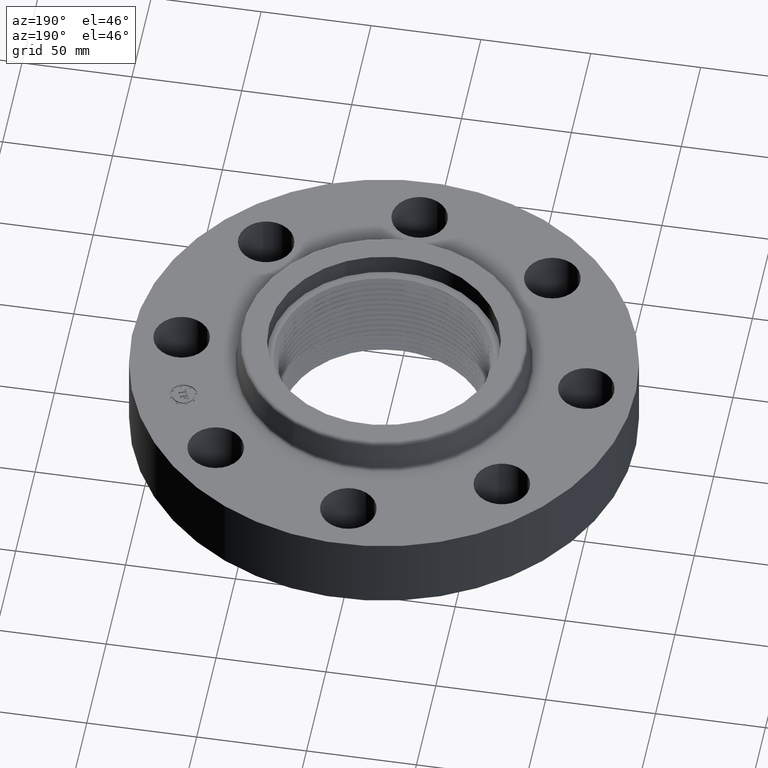
[diagram: clean part render]
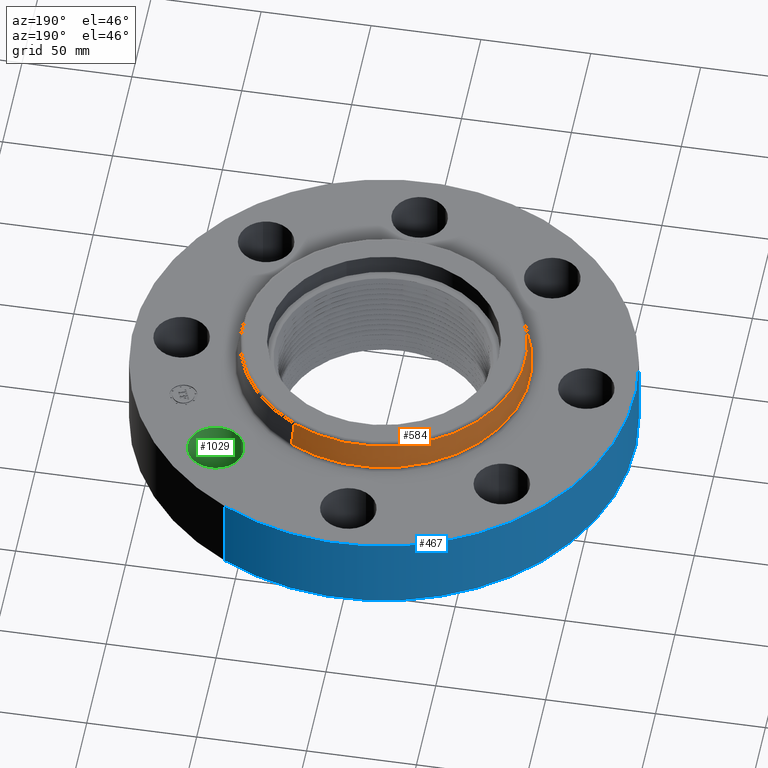
[diagram: same view with three faces highlighted in distinct colors, each labeled with its STEP entity id]
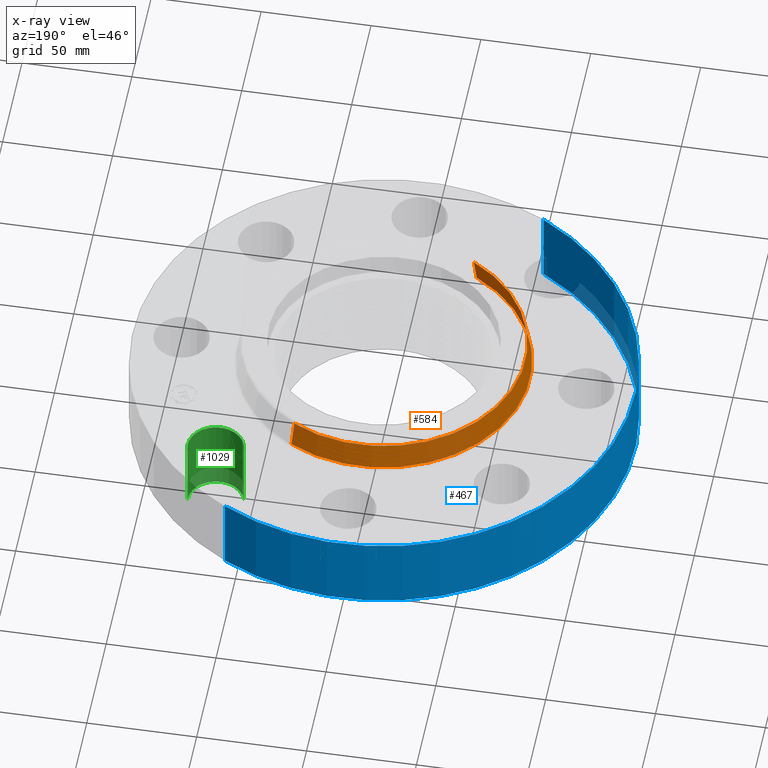
[diagram: x-ray of the same camera — body ghosted, the three highlighted faces saturated]
A machine part, auxiliary view with three faces highlighted in distinct colors.
The next image is the same camera in x-ray (body ghosted, the three faces saturated) — at least one of them is partly hidden behind the body in this view.
Their STEP definitions:

[orange] entity #584 — the highlighted conical surface has half-angle 10 deg.
#532=AXIS2_PLACEMENT_3D('Circle Axis2P3D',#530,#531,$) ;
#545=AXIS2_PLACEMENT_3D('Cone Axis2P3D',#542,#543,#544) ;
#575=AXIS2_PLACEMENT_3D('Circle Axis2P3D',#573,#574,$) ;
#503=CARTESIAN_POINT('Vertex',(1.25430066715,2.29598197056,1.42958110935)) ;
#510=CARTESIAN_POINT('Vertex',(-1.25430066715,-2.29598197056,1.42958110935)) ;
#530=CARTESIAN_POINT('Axis2P3D Location',(0.,0.,1.42958110935)) ;
#542=CARTESIAN_POINT('Axis2P3D Location',(0.,0.,1.89041889067)) ;
#547=CARTESIAN_POINT('Line Origine',(1.23482205469,2.2603266096,1.66000000001)) ;
#551=CARTESIAN_POINT('Vertex',(1.21534344222,2.22467124864,1.89041889067)) ;
#558=CARTESIAN_POINT('Vertex',(-1.21534344222,-2.22467124864,1.89041889067)) ;
#561=CARTESIAN_POINT('Line Origine',(-1.23482205469,-2.2603266096,1.66000000001)) ;
#573=CARTESIAN_POINT('Axis2P3D Location',(0.,0.,1.89041889067)) ;
#531=DIRECTION('Axis2P3D Direction',(0.,0.,-0.0393700787402)) ;
#543=DIRECTION('Axis2P3D Direction',(0.,0.,-0.0393700787402)) ;
#544=DIRECTION('Axis2P3D XDirection',(-0.0188750212049,-0.0345504945626,0.)) ;
#548=DIRECTION('Vector Direction',(0.00327761303565,0.00599963041829,-0.03877195878)) ;
#562=DIRECTION('Vector Direction',(-0.00327761303565,-0.00599963041829,-0.03877195878)) ;
#574=DIRECTION('Axis2P3D Direction',(0.,0.,-0.0393700787402)) ;
#549=VECTOR('Line Direction',#548,0.0393700787402) ;
#563=VECTOR('Line Direction',#562,0.0393700787402) ;
#579=ORIENTED_EDGE('',*,*,#534,.F.) ;
#580=ORIENTED_EDGE('',*,*,#565,.T.) ;
#581=ORIENTED_EDGE('',*,*,#577,.T.) ;
#582=ORIENTED_EDGE('',*,*,#553,.F.) ;
#584=ADVANCED_FACE('PartBody',(#583),#546,.T.) ;
#533=CIRCLE('generated circle',#532,2.6162575127) ;
#576=CIRCLE('generated circle',#575,2.53499937812) ;
#546=CONICAL_SURFACE('Cone',#545,2.53499937812,0.174532925199) ;
#534=EDGE_CURVE('',#511,#504,#533,.T.) ;
#553=EDGE_CURVE('',#504,#552,#550,.F.) ;
#565=EDGE_CURVE('',#511,#559,#564,.F.) ;
#577=EDGE_CURVE('',#559,#552,#576,.T.) ;
#578=EDGE_LOOP('',(#579,#580,#581,#582)) ;
#583=FACE_OUTER_BOUND('',#578,.T.) ;
#550=LINE('Line',#547,#549) ;
#564=LINE('Line',#561,#563) ;
#504=VERTEX_POINT('',#503) ;
#511=VERTEX_POINT('',#510) ;
#552=VERTEX_POINT('',#551) ;
#559=VERTEX_POINT('',#558) ;

[blue] entity #467 — the highlighted cylindrical surface (partial cylindrical patch) has radius 114.3 mm, axis along (0, 0, -1).
#431=AXIS2_PLACEMENT_3D('Cylinder Axis2P3D',#428,#429,#430) ;
#435=AXIS2_PLACEMENT_3D('Circle Axis2P3D',#433,#434,$) ;
#451=AXIS2_PLACEMENT_3D('Circle Axis2P3D',#449,#450,$) ;
#428=CARTESIAN_POINT('Axis2P3D Location',(0.,0.,0.845000000003)) ;
#433=CARTESIAN_POINT('Axis2P3D Location',(0.,0.,5.59482469102E-016)) ;
#437=CARTESIAN_POINT('Vertex',(-2.15741492373,-3.94912152852,5.59482469102E-016)) ;
#439=CARTESIAN_POINT('Vertex',(2.15741492373,3.94912152852,5.59482469102E-016)) ;
#442=CARTESIAN_POINT('Line Origine',(-2.15741492373,-3.94912152852,0.690000000003)) ;
#446=CARTESIAN_POINT('Vertex',(-2.15741492373,-3.94912152852,1.38000000001)) ;
#449=CARTESIAN_POINT('Axis2P3D Location',(0.,0.,1.38000000001)) ;
#453=CARTESIAN_POINT('Vertex',(2.15741492373,3.94912152852,1.38000000001)) ;
#456=CARTESIAN_POINT('Line Origine',(2.15741492373,3.94912152852,0.690000000003)) ;
#429=DIRECTION('Axis2P3D Direction',(0.,0.,-0.0393700787402)) ;
#430=DIRECTION('Axis2P3D XDirection',(0.0188750212049,0.0345504945626,0.)) ;
#434=DIRECTION('Axis2P3D Direction',(0.,0.,-0.0393700787402)) ;
#443=DIRECTION('Vector Direction',(0.,0.,-0.0393700787402)) ;
#450=DIRECTION('Axis2P3D Direction',(0.,0.,-0.0393700787402)) ;
#457=DIRECTION('Vector Direction',(0.,0.,-0.0393700787402)) ;
#444=VECTOR('Line Direction',#443,0.0393700787402) ;
#458=VECTOR('Line Direction',#457,0.0393700787402) ;
#462=ORIENTED_EDGE('',*,*,#441,.F.) ;
#463=ORIENTED_EDGE('',*,*,#448,.T.) ;
#464=ORIENTED_EDGE('',*,*,#455,.T.) ;
#465=ORIENTED_EDGE('',*,*,#460,.F.) ;
#467=ADVANCED_FACE('PartBody',(#466),#432,.T.) ;
#436=CIRCLE('generated circle',#435,4.50000000002) ;
#452=CIRCLE('generated circle',#451,4.50000000002) ;
#432=CYLINDRICAL_SURFACE('generated cylinder',#431,4.50000000002) ;
#441=EDGE_CURVE('',#438,#440,#436,.T.) ;
#448=EDGE_CURVE('',#438,#447,#445,.F.) ;
#455=EDGE_CURVE('',#447,#454,#452,.T.) ;
#460=EDGE_CURVE('',#440,#454,#459,.F.) ;
#461=EDGE_LOOP('',(#462,#463,#464,#465)) ;
#466=FACE_OUTER_BOUND('',#461,.T.) ;
#445=LINE('Line',#442,#444) ;
#459=LINE('Line',#456,#458) ;
#438=VERTEX_POINT('',#437) ;
#440=VERTEX_POINT('',#439) ;
#447=VERTEX_POINT('',#446) ;
#454=VERTEX_POINT('',#453) ;

[green] entity #1029 — the highlighted cylindrical surface (edge-blend (fillet) strip) has radius 12.7 mm, axis along (0, 0, -1).
#807=AXIS2_PLACEMENT_3D('Circle Axis2P3D',#805,#806,$) ;
#990=AXIS2_PLACEMENT_3D('Cylinder Axis2P3D',#987,#988,#989) ;
#1020=AXIS2_PLACEMENT_3D('Circle Axis2P3D',#1018,#1019,$) ;
#800=CARTESIAN_POINT('Vertex',(2.08348726682,2.42249231624,0.)) ;
#802=CARTESIAN_POINT('Vertex',(3.04303689681,2.70403184738,0.)) ;
#805=CARTESIAN_POINT('Axis2P3D Location',(2.56326208181,2.56326208181,0.)) ;
#987=CARTESIAN_POINT('Axis2P3D Location',(2.56326208181,2.56326208181,1.37606299213)) ;
#992=CARTESIAN_POINT('Line Origine',(2.08348726682,2.42249231624,0.690000000003)) ;
#996=CARTESIAN_POINT('Vertex',(2.08348726682,2.42249231624,1.38000000001)) ;
#999=CARTESIAN_POINT('Line Origine',(3.04303689681,2.70403184738,0.690000000003)) ;
#1003=CARTESIAN_POINT('Vertex',(3.04303689681,2.70403184738,1.38000000001)) ;
#1018=CARTESIAN_POINT('Axis2P3D Location',(2.56326208181,2.56326208181,1.38000000001)) ;
#806=DIRECTION('Axis2P3D Direction',(0.,0.,-0.0393700787402)) ;
#988=DIRECTION('Axis2P3D Direction',(0.,0.,-0.0393700787402)) ;
#989=DIRECTION('Axis2P3D XDirection',(0.0377775444876,0.0110842335096,0.)) ;
#993=DIRECTION('Vector Direction',(0.,0.,-0.0393700787402)) ;
#1000=DIRECTION('Vector Direction',(0.,0.,-0.0393700787402)) ;
#1019=DIRECTION('Axis2P3D Direction',(0.,0.,-0.0393700787402)) ;
#994=VECTOR('Line Direction',#993,0.0393700787402) ;
#1001=VECTOR('Line Direction',#1000,0.0393700787402) ;
#1024=ORIENTED_EDGE('',*,*,#1005,.F.) ;
#1025=ORIENTED_EDGE('',*,*,#809,.T.) ;
#1026=ORIENTED_EDGE('',*,*,#998,.T.) ;
#1027=ORIENTED_EDGE('',*,*,#1022,.F.) ;
#1029=ADVANCED_FACE('PartBody',(#1028),#991,.F.) ;
#808=CIRCLE('generated circle',#807,0.500000000002) ;
#1021=CIRCLE('generated circle',#1020,0.500000000002) ;
#991=CYLINDRICAL_SURFACE('generated cylinder',#990,0.500000000002) ;
#809=EDGE_CURVE('',#803,#801,#808,.T.) ;
#998=EDGE_CURVE('',#801,#997,#995,.F.) ;
#1005=EDGE_CURVE('',#803,#1004,#1002,.F.) ;
#1022=EDGE_CURVE('',#1004,#997,#1021,.T.) ;
#1023=EDGE_LOOP('',(#1024,#1025,#1026,#1027)) ;
#1028=FACE_OUTER_BOUND('',#1023,.T.) ;
#995=LINE('Line',#992,#994) ;
#1002=LINE('Line',#999,#1001) ;
#801=VERTEX_POINT('',#800) ;
#803=VERTEX_POINT('',#802) ;
#997=VERTEX_POINT('',#996) ;
#1004=VERTEX_POINT('',#1003) ;